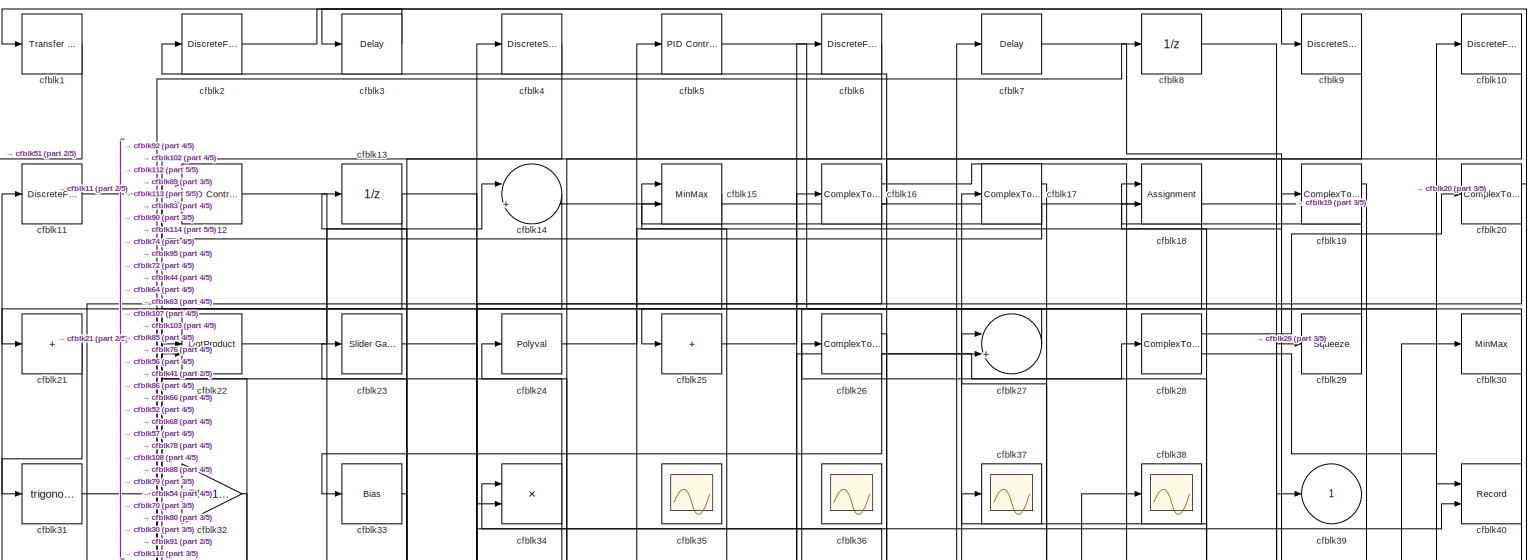
[diagram: root canvas - part 1/5, full width, top band]
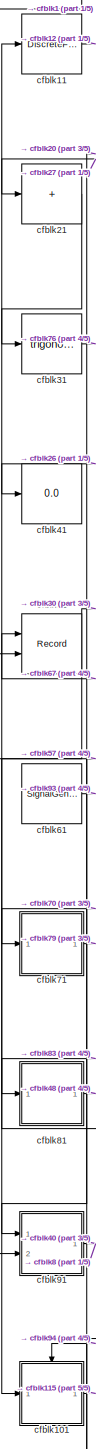
[diagram: root canvas - part 2/5, left side, full height]
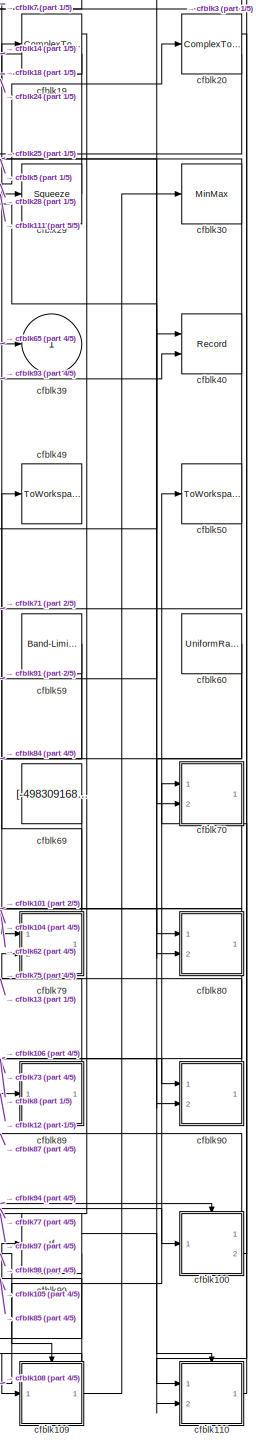
[diagram: root canvas - part 3/5, right side, full height]
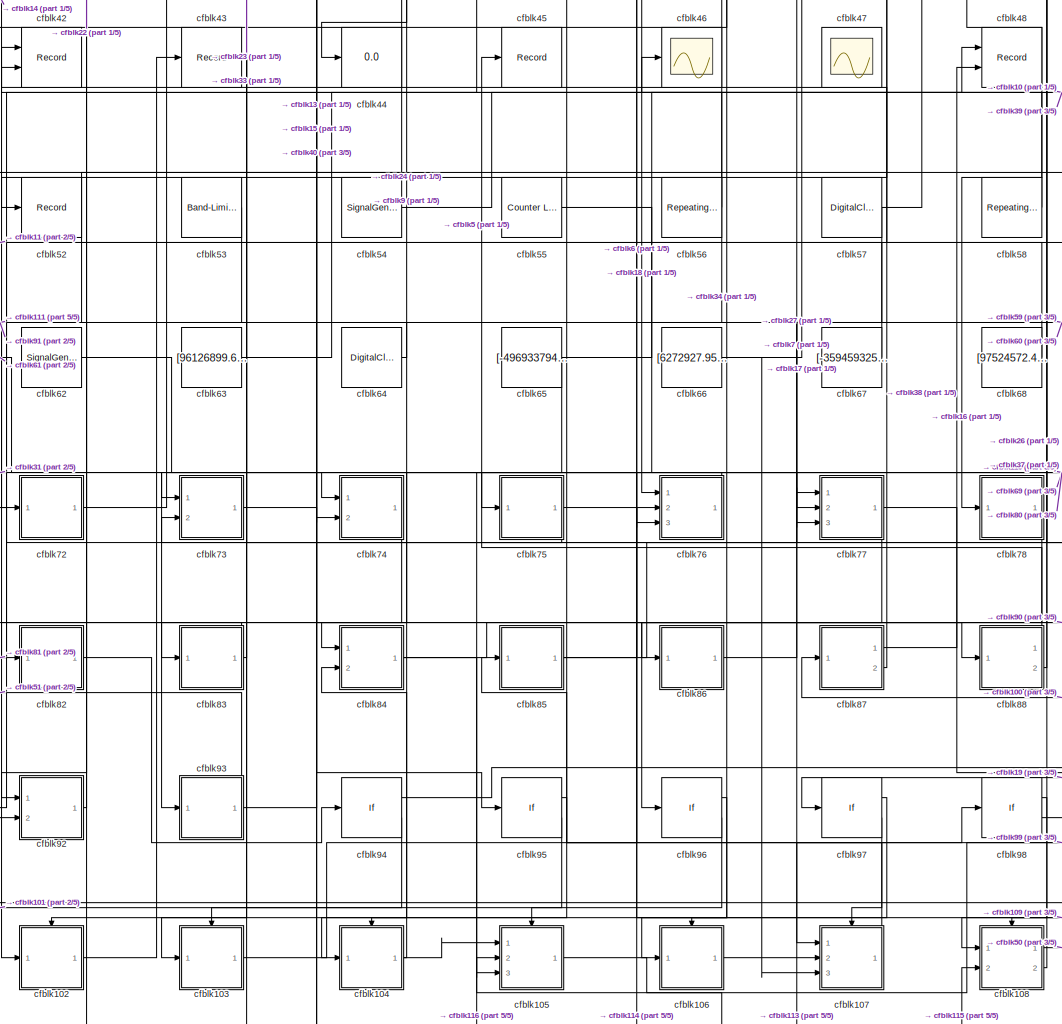
[diagram: root canvas - part 4/5, central region]
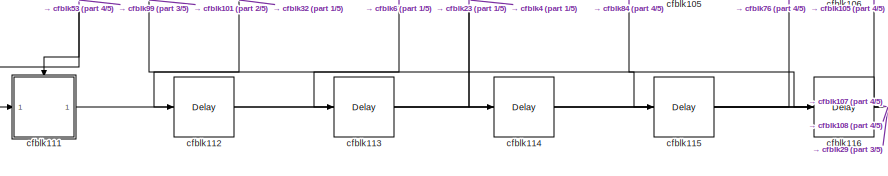
[diagram: root canvas - part 5/5, bottom left region]
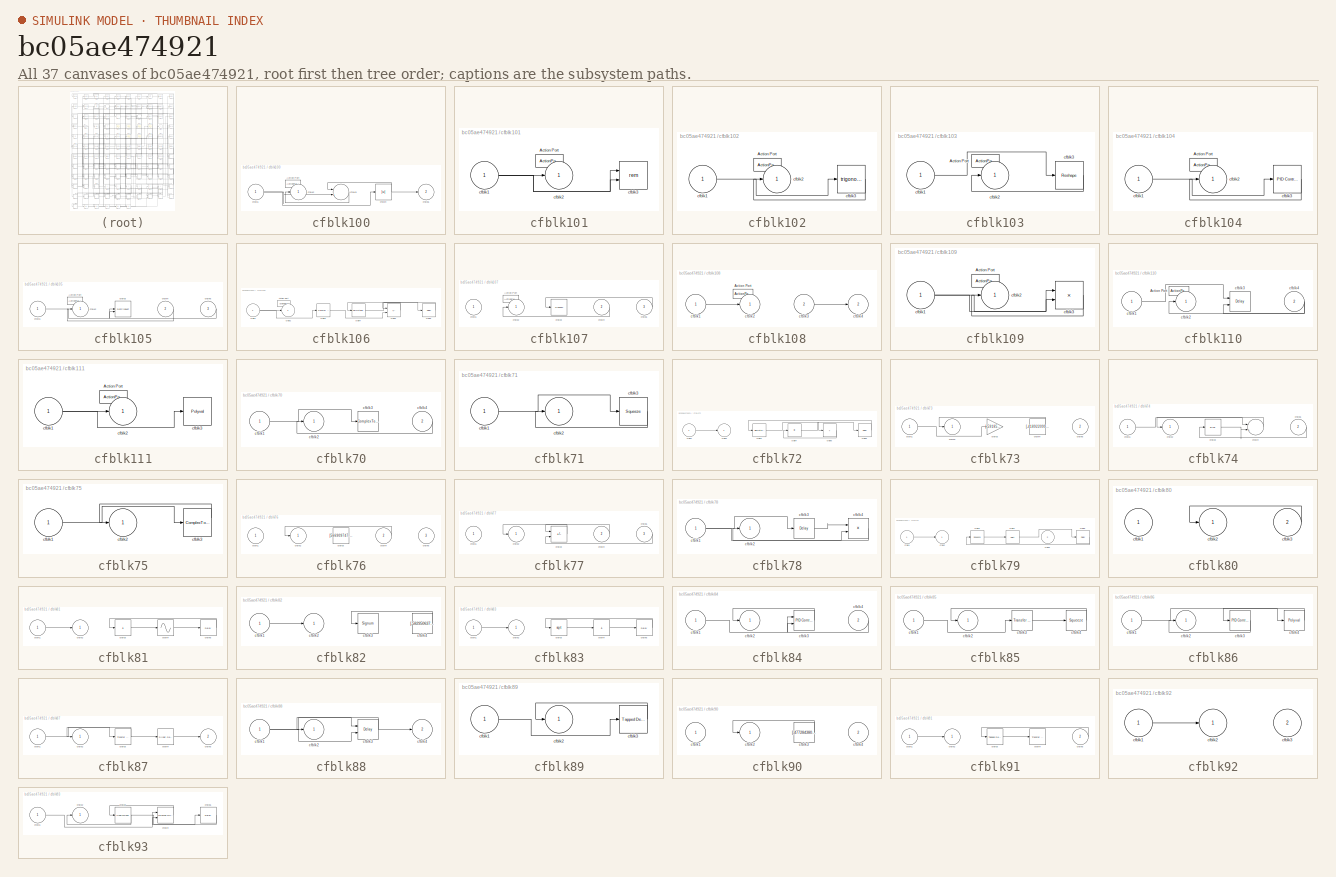
[diagram: thumbnail index - all 37 canvases of the model, root first then tree order]
MODEL slx_bc05ae474921
KIND model
CONFIG AbsTol = auto
CONFIG EnableMultiTasking = off
CONFIG FixedStep = auto
CONFIG MaxStep = auto
CONFIG MinStep = auto
CONFIG RelTol = 1e-3
CONFIG SampleTimeConstraint = Unconstrained
CONFIG SolverName = VariableStepAuto
CONFIG StartTime = 0.0
CONFIG StopTime = 10.0
BLOCK [Reference] cfblk1  REF=simulink/Discrete/Transfer Fcn
Real Zero
  Ports = [1, 1]
  SourceBlock = simulink/Discrete/Transfer Fcn\nReal Zero
  SourceProductBaseCode = SL
  SourceType = Transfer Fcn Real Zero
BLOCK [DiscreteFir] cfblk10
  InputPortMap = u0
  OutputPortMap = o0
  Ports = [1, 1]
  SampleTime = 1
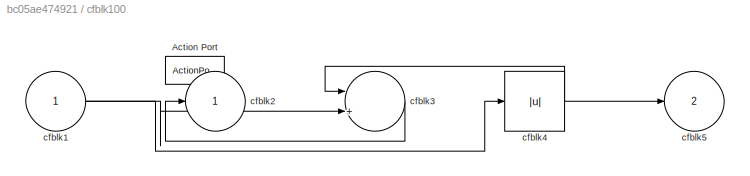
BLOCK [SubSystem] cfblk100
  Ports = [1, 2, 0, 0, 0, 0, 0, 1]
  RequestExecContextInheritance = off
  TreatAsAtomicUnit = on
BLOCK [ActionPort] cfblk100/Action Port
  ActionPortLabel = if(u1 >= 0)
BLOCK [Inport] cfblk100/cfblk1
BLOCK [Outport] cfblk100/cfblk2
BLOCK [Sum] cfblk100/cfblk3
  Inputs = |++
  Ports = [2, 1]
BLOCK [Abs] cfblk100/cfblk4
  SaturateOnIntegerOverflow = off
BLOCK [Outport] cfblk100/cfblk5
  Port = 2
BLOCK [SubSystem] cfblk101
  Ports = [1, 1, 0, 0, 0, 0, 0, 1]
  RequestExecContextInheritance = off
  TreatAsAtomicUnit = on
BLOCK [ActionPort] cfblk101/Action Port
  ActionPortLabel = else
BLOCK [Inport] cfblk101/cfblk1
BLOCK [Outport] cfblk101/cfblk2
BLOCK [Math] cfblk101/cfblk3
  Operator = rem
  Ports = [2, 1]
BLOCK [SubSystem] cfblk102
  Ports = [1, 1, 0, 0, 0, 0, 0, 1]
  RequestExecContextInheritance = off
  TreatAsAtomicUnit = on
BLOCK [ActionPort] cfblk102/Action Port
  ActionPortLabel = if(u1 >= 0)
BLOCK [Inport] cfblk102/cfblk1
BLOCK [Outport] cfblk102/cfblk2
BLOCK [Trigonometry] cfblk102/cfblk3
  Ports = [1, 1]
BLOCK [SubSystem] cfblk103
  Ports = [1, 1, 0, 0, 0, 0, 0, 1]
  RequestExecContextInheritance = off
  TreatAsAtomicUnit = on
BLOCK [ActionPort] cfblk103/Action Port
  ActionPortLabel = else
BLOCK [Inport] cfblk103/cfblk1
BLOCK [Outport] cfblk103/cfblk2
BLOCK [Reshape] cfblk103/cfblk3
  Ports = [1, 1]
BLOCK [SubSystem] cfblk104
  Ports = [1, 1, 0, 0, 0, 0, 0, 1]
  RequestExecContextInheritance = off
  TreatAsAtomicUnit = on
BLOCK [ActionPort] cfblk104/Action Port
  ActionPortLabel = if(u1 >= 0)
BLOCK [Inport] cfblk104/cfblk1
BLOCK [Outport] cfblk104/cfblk2
BLOCK [Reference] cfblk104/cfblk3  REF=slpidlib/PID Controller
  Ports = [1, 1]
  SourceBlock = slpidlib/PID Controller
  SourceProductBaseCode = SL
  SourceType = PID 1dof
BLOCK [SubSystem] cfblk105
  Ports = [3, 1, 0, 0, 0, 0, 0, 1]
  RequestExecContextInheritance = off
  TreatAsAtomicUnit = on
BLOCK [ActionPort] cfblk105/Action Port
  ActionPortLabel = else
BLOCK [Inport] cfblk105/cfblk1
BLOCK [Outport] cfblk105/cfblk2
BLOCK [DotProduct] cfblk105/cfblk3
  OutDataTypeStr = Inherit: Inherit via internal rule
BLOCK [Inport] cfblk105/cfblk4
  Port = 2
BLOCK [Inport] cfblk105/cfblk5
  Port = 3
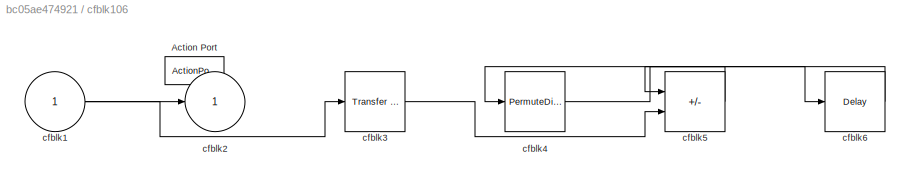
BLOCK [SubSystem] cfblk106
  Ports = [1, 1, 0, 0, 0, 0, 0, 1]
  RequestExecContextInheritance = off
  TreatAsAtomicUnit = on
BLOCK [ActionPort] cfblk106/Action Port
  ActionPortLabel = if(u1 >= 0)
BLOCK [Inport] cfblk106/cfblk1
BLOCK [Outport] cfblk106/cfblk2
BLOCK [Reference] cfblk106/cfblk3  REF=simulink/Discrete/Transfer Fcn
First Order
  Ports = [1, 1]
  SourceBlock = simulink/Discrete/Transfer Fcn\nFirst Order
  SourceProductBaseCode = SL
  SourceType = First Order Transfer Fcn
BLOCK [PermuteDimensions] cfblk106/cfblk4
BLOCK [Sum] cfblk106/cfblk5
  IconShape = rectangular
  Inputs = --
  Ports = [2, 1]
BLOCK [Delay] cfblk106/cfblk6
  InputPortMap = u0
  Ports = [1, 1]
BLOCK [SubSystem] cfblk107
  Ports = [3, 1, 0, 0, 0, 0, 0, 1]
  RequestExecContextInheritance = off
  TreatAsAtomicUnit = on
BLOCK [ActionPort] cfblk107/Action Port
  ActionPortLabel = else
BLOCK [Inport] cfblk107/cfblk1
BLOCK [Outport] cfblk107/cfblk2
BLOCK [Signum] cfblk107/cfblk3
BLOCK [Inport] cfblk107/cfblk4
  Port = 2
BLOCK [Inport] cfblk107/cfblk5
  Port = 3
BLOCK [SubSystem] cfblk108
  Ports = [2, 2, 0, 0, 0, 0, 0, 1]
  RequestExecContextInheritance = off
  TreatAsAtomicUnit = on
BLOCK [ActionPort] cfblk108/Action Port
  ActionPortLabel = if(u1 >= 0)
BLOCK [Inport] cfblk108/cfblk1
BLOCK [Outport] cfblk108/cfblk2
BLOCK [Inport] cfblk108/cfblk3
  Port = 2
BLOCK [Outport] cfblk108/cfblk4
  Port = 2
BLOCK [SubSystem] cfblk109
  Ports = [1, 1, 0, 0, 0, 0, 0, 1]
  RequestExecContextInheritance = off
  TreatAsAtomicUnit = on
BLOCK [ActionPort] cfblk109/Action Port
  ActionPortLabel = else
BLOCK [Inport] cfblk109/cfblk1
BLOCK [Outport] cfblk109/cfblk2
BLOCK [Product] cfblk109/cfblk3
  Ports = [2, 1]
BLOCK [DiscreteFilter] cfblk11
  InputPortMap = u0
  Ports = [1, 1]
  SampleTime = 1
BLOCK [SubSystem] cfblk110
  Ports = [2, 1, 0, 0, 0, 0, 0, 1]
  RequestExecContextInheritance = off
  TreatAsAtomicUnit = on
BLOCK [ActionPort] cfblk110/Action Port
  ActionPortLabel = if(u1 >= 0)
BLOCK [Inport] cfblk110/cfblk1
BLOCK [Outport] cfblk110/cfblk2
BLOCK [Delay] cfblk110/cfblk3
  DelayLengthSource = Input port
  InputPortMap = u0,p1
  Ports = [2, 1]
BLOCK [Inport] cfblk110/cfblk4
  Port = 2
BLOCK [SubSystem] cfblk111
  Ports = [1, 1, 0, 0, 0, 0, 0, 1]
  RequestExecContextInheritance = off
  TreatAsAtomicUnit = on
BLOCK [ActionPort] cfblk111/Action Port
  ActionPortLabel = else
BLOCK [Inport] cfblk111/cfblk1
BLOCK [Outport] cfblk111/cfblk2
BLOCK [Polyval] cfblk111/cfblk3
  Coefs = [ +2.081618890e-019, -1.441693666e-014, +4.719686976e-010, -8.536869453e-006, +1.621573104e-001, -8.087801117e+001 ]
BLOCK [Delay] cfblk112
  InputPortMap = u0
  Ports = [1, 1]
  SampleTime = 1
BLOCK [Delay] cfblk113
  InputPortMap = u0
  Ports = [1, 1]
  SampleTime = 1
BLOCK [Delay] cfblk114
  InputPortMap = u0
  Ports = [1, 1]
  SampleTime = 1
BLOCK [Delay] cfblk115
  InputPortMap = u0
  Ports = [1, 1]
  SampleTime = 1
BLOCK [Delay] cfblk116
  InputPortMap = u0
  Ports = [1, 1]
  SampleTime = 1
BLOCK [Reference] cfblk12  REF=slpidlib/PID Controller (2DOF)
  Ports = [2, 1]
  SourceBlock = slpidlib/PID Controller (2DOF)
  SourceProductBaseCode = SL
  SourceType = PID 2dof
BLOCK [UnitDelay] cfblk13
  HasFrameUpgradeWarning = on
BLOCK [Sum] cfblk14
  Inputs = |++
  Ports = [2, 1]
BLOCK [MinMax] cfblk15
  Function = max
  Inputs = 2
  Ports = [2, 1]
BLOCK [ComplexToMagnitudeAngle] cfblk16
  Ports = [1, 2]
BLOCK [ComplexToRealImag] cfblk17
  Ports = [1, 2]
BLOCK [Assignment] cfblk18
  DiagnosticForDimensions = Warning
  IndexOptions = Index vector (dialog)
  Indices = 1
  OutputSizes = 1
  Ports = [2, 1]
BLOCK [ComplexToRealImag] cfblk19
  Ports = [1, 2]
BLOCK [DiscreteFilter] cfblk2
  InputPortMap = u0
  Ports = [1, 1]
  SampleTime = 1
BLOCK [ComplexToMagnitudeAngle] cfblk20
  Ports = [1, 2]
BLOCK [Sum] cfblk21
  IconShape = rectangular
  Inputs = +
  Ports = [1, 1]
BLOCK [DotProduct] cfblk22
  OutDataTypeStr = Inherit: Inherit via internal rule
BLOCK [Reference] cfblk23  REF=simulink/Math
Operations/Slider
Gain
  Ports = [1, 1]
  SourceBlock = simulink/Math\nOperations/Slider\nGain
  SourceProductBaseCode = SL
  SourceType = Slider Gain
BLOCK [Polyval] cfblk24
  Coefs = [ +2.081618890e-019, -1.441693666e-014, +4.719686976e-010, -8.536869453e-006, +1.621573104e-001, -8.087801117e+001 ]
BLOCK [Sum] cfblk25
  IconShape = rectangular
  Inputs = +
  Ports = [1, 1]
BLOCK [ComplexToMagnitudeAngle] cfblk26
  Ports = [1, 2]
BLOCK [Sum] cfblk27
  Inputs = |++
  Ports = [2, 1]
BLOCK [ComplexToRealImag] cfblk28
  Ports = [1, 2]
BLOCK [Squeeze] cfblk29
BLOCK [Delay] cfblk3
  InputPortMap = u0
  Ports = [1, 1]
  SampleTime = 1
BLOCK [MinMax] cfblk30
  Function = max
  Ports = [1, 1]
BLOCK [Trigonometry] cfblk31
  Ports = [1, 1]
BLOCK [Gain] cfblk32
  Gain = [-744013135.474765]
BLOCK [Bias] cfblk33
  Bias = [934056195.028389]
  SaturateOnIntegerOverflow = off
BLOCK [Product] cfblk34
  Ports = [2, 1]
BLOCK [Scope] cfblk35
  Floating = on
  NumInputPorts = 1
  Ports = []
BLOCK [Scope] cfblk36
  Floating = on
  NumInputPorts = 1
  Ports = []
BLOCK [Scope] cfblk37
  Floating = off
  NumInputPorts = 1
  Ports = [1]
BLOCK [Scope] cfblk38
  Floating = off
  NumInputPorts = 1
  Ports = [1]
BLOCK [Outport] cfblk39
BLOCK [DiscreteStateSpace] cfblk4
BLOCK [Record] cfblk40
  CompatibilityTag = XY
  FileSettingsInternal = {"entries":[{"content":{"excelSettings":{"content":{},"type":"Streamout.ExcelSettings"}},"type":"Streamout.FileSettingStorage","uuid":"ac7d372c-dd0a-40d9-8f93-2bed3ffcb02e"}],"packageUris":["http://schema.mathworks.com/mf0/streamout_blocks/R2020a"],"version":"1.0"}
  Layout = [1 1]
  Ports = [2]
  SignalsInternal = {"entries":[{"content":{"signals":[{"content":{"blockPath":["sampleModel173/cfblk40"],"channel":[],"dimensions":[1],"domain":"sampleModel173/cfblk40","lineColor":"#a2142f","plots":[1],"port":1,"sid":[""],"signalID":6486,"signalName":"cfblk91"},"type":"RecordBlkView.Signal","uuid":"04550265-7776-4952-b4b8-fad3a9e152c9"},{"content":{"blockPath":["sampleModel173/cfblk40"],"channel":[],"dimensions":[1...<+383ch>
  VisualizationBindings = {"xyplotplugin":{"info":[{"series":[{"bindingParametersList":[{"parameter":"X-Axis","signalID":6486,"signalName":"cfblk91"},{"parameter":"Y-Axis","signalID":6490,"signalName":"cfblk93"}],"seriesID":32667}],"subplotID":1}]}}
BLOCK [Display] cfblk41
  Decimation = 1
  Ports = [1]
BLOCK [Record] cfblk42
  CompatibilityTag = XY
  FileSettingsInternal = {"entries":[{"content":{"excelSettings":{"content":{},"type":"Streamout.ExcelSettings"}},"type":"Streamout.FileSettingStorage","uuid":"98f4204a-bc71-4c77-a4fc-4dc474f3652d"}],"packageUris":["http://schema.mathworks.com/mf0/streamout_blocks/R2020a"],"version":"1.0"}
  Layout = [1 1]
  Ports = [2]
  SignalsInternal = {"entries":[{"content":{"signals":[{"content":{"blockPath":["sampleModel173/cfblk42"],"channel":[],"dimensions":[1],"domain":"sampleModel173/cfblk42","lineColor":"#a2142f","plots":[1],"port":1,"sid":[""],"signalID":6494,"signalName":"cfblk58"},"type":"RecordBlkView.Signal","uuid":"54ebf9e8-4049-452c-904a-07aac4c77107"},{"content":{"blockPath":["sampleModel173/cfblk42"],"channel":[],"dimensions":[1...<+385ch>
  VisualizationBindings = {"xyplotplugin":{"info":[{"series":[{"bindingParametersList":[{"parameter":"X-Axis","signalID":6494,"signalName":"cfblk58"},{"parameter":"Y-Axis","signalID":6498,"signalName":"cfblk87:2"}],"seriesID":36552}],"subplotID":1}]}}
BLOCK [Record] cfblk43
  FileSettingsInternal = {"entries":[{"content":{"excelSettings":{"content":{},"type":"Streamout.ExcelSettings"}},"type":"Streamout.FileSettingStorage","uuid":"dd427ad3-f8cc-4d0b-ad25-0937522762f9"}],"packageUris":["http://schema.mathworks.com/mf0/streamout_blocks/R2020a"],"version":"1.0"}
  Ports = [1]
  SignalsInternal = {"entries":[{"content":{"signals":[{"content":{"blockPath":["sampleModel173/cfblk43"],"channel":[],"dimensions":[1],"domain":"sampleModel173/cfblk43","lineColor":"#22b573","plots":[1],"port":1,"sid":[""],"signalID":6502,"signalName":"cfblk102"},"type":"RecordBlkView.Signal","uuid":"e96818c3-e4cd-4c92-b99d-5e4a5bdab113"}]},"type":"RecordBlkView.InputSignals","uuid":"25597274-1f8f-46e0-ac63-e07cdd4c...<+98ch>
  VisualizationBindings = {"sparklinesplugin":{"info":[{"bindingParametersList":[],"subplotID":1}]}}
BLOCK [Display] cfblk44
  Decimation = 1
  Ports = [1]
BLOCK [Record] cfblk45
  FileSettingsInternal = {"entries":[{"content":{"excelSettings":{"content":{},"type":"Streamout.ExcelSettings"}},"type":"Streamout.FileSettingStorage","uuid":"4a883e5b-73dc-46ef-852a-c9309d397aeb"}],"packageUris":["http://schema.mathworks.com/mf0/streamout_blocks/R2020a"],"version":"1.0"}
  Ports = [1]
  SignalsInternal = {"entries":[{"content":{"signals":[{"content":{"blockPath":["sampleModel173/cfblk45"],"channel":[],"dimensions":[1],"domain":"sampleModel173/cfblk45","lineColor":"#0072bd","plots":[1],"port":1,"sid":[""],"signalID":6506,"signalName":"cfblk88:1"},"type":"RecordBlkView.Signal","uuid":"33cb4f59-80e7-4453-8ec4-05215251455d"}]},"type":"RecordBlkView.InputSignals","uuid":"dc2aa3db-0660-41cb-9163-f3afb9f...<+99ch>
  VisualizationBindings = {"sparklinesplugin":{"info":[{"bindingParametersList":[],"subplotID":1}]}}
BLOCK [Scope] cfblk46
  Floating = off
  NumInputPorts = 1
  Ports = [1]
BLOCK [Scope] cfblk47
  Floating = on
  NumInputPorts = 1
  Ports = []
BLOCK [Record] cfblk48
  CompatibilityTag = XY
  FileSettingsInternal = {"entries":[{"content":{"excelSettings":{"content":{},"type":"Streamout.ExcelSettings"}},"type":"Streamout.FileSettingStorage","uuid":"f392cfb0-111d-4cfb-86a1-b9696635cc0a"}],"packageUris":["http://schema.mathworks.com/mf0/streamout_blocks/R2020a"],"version":"1.0"}
  Layout = [1 1]
  Ports = [2]
  SignalsInternal = {"entries":[{"content":{"signals":[{"content":{"blockPath":["sampleModel173/cfblk48"],"channel":[],"dimensions":[1],"domain":"sampleModel173/cfblk48","lineColor":"#a2142f","plots":[1],"port":1,"sid":[""],"signalID":6510,"signalName":"cfblk81"},"type":"RecordBlkView.Signal","uuid":"ac88b72e-4ae7-4a92-9df9-0b8b80bfc131"},{"content":{"blockPath":["sampleModel173/cfblk48"],"channel":[],"dimensions":[1...<+385ch>
  VisualizationBindings = {"xyplotplugin":{"info":[{"series":[{"bindingParametersList":[{"parameter":"X-Axis","signalID":6510,"signalName":"cfblk81"},{"parameter":"Y-Axis","signalID":6514,"signalName":"cfblk87:1"}],"seriesID":18221}],"subplotID":1}]}}
BLOCK [ToWorkspace] cfblk49
  FixptAsFi = on
  MaxDataPoints = inf
  Ports = [1]
  SampleTime = -1
  SaveFormat = Timeseries
  VariableName = kgzkzwq
BLOCK [Reference] cfblk5  REF=slpidlib/PID Controller
  Ports = [1, 1]
  SourceBlock = slpidlib/PID Controller
  SourceProductBaseCode = SL
  SourceType = PID 1dof
BLOCK [ToWorkspace] cfblk50
  FixptAsFi = on
  MaxDataPoints = inf
  Ports = [1]
  SampleTime = -1
  SaveFormat = Timeseries
  VariableName = pdyiylr
BLOCK [Record] cfblk51
  CompatibilityTag = XY
  FileSettingsInternal = {"entries":[{"content":{"excelSettings":{"content":{},"type":"Streamout.ExcelSettings"}},"type":"Streamout.FileSettingStorage","uuid":"3226b747-61fa-41c7-a299-72f406cb1615"}],"packageUris":["http://schema.mathworks.com/mf0/streamout_blocks/R2020a"],"version":"1.0"}
  Layout = [1 1]
  Ports = [2]
  SignalsInternal = {"entries":[{"content":{"signals":[{"content":{"blockPath":["sampleModel173/cfblk51"],"channel":[],"dimensions":[1],"domain":"sampleModel173/cfblk51","lineColor":"#a2142f","plots":[1],"port":1,"sid":[""],"signalID":6518,"signalName":"cfblk93"},"type":"RecordBlkView.Signal","uuid":"c4b554cb-08b0-4747-b92a-3f7634a20115"},{"content":{"blockPath":["sampleModel173/cfblk51"],"channel":[],"dimensions":[1...<+382ch>
  VisualizationBindings = {"xyplotplugin":{"info":[{"series":[{"bindingParametersList":[{"parameter":"X-Axis","signalID":6518,"signalName":"cfblk93"},{"parameter":"Y-Axis","signalID":6522,"signalName":"cfblk1"}],"seriesID":48364}],"subplotID":1}]}}
BLOCK [Record] cfblk52
  FileSettingsInternal = {"entries":[{"content":{"excelSettings":{"content":{},"type":"Streamout.ExcelSettings"}},"type":"Streamout.FileSettingStorage","uuid":"b1c8602d-8e85-4121-9e1b-32b7eeb49d84"}],"packageUris":["http://schema.mathworks.com/mf0/streamout_blocks/R2020a"],"version":"1.0"}
  Ports = [1]
  SignalsInternal = {"entries":[{"content":{"signals":[{"content":{"blockPath":["sampleModel173/cfblk52"],"channel":[],"dimensions":[1],"domain":"sampleModel173/cfblk52","lineColor":"#4dbeee","plots":[1],"port":1,"sid":[""],"signalID":6526,"signalName":"cfblk17:1"},"type":"RecordBlkView.Signal","uuid":"7e7d0b4f-45d8-41ca-9f71-80e07a5db089"}]},"type":"RecordBlkView.InputSignals","uuid":"500e5f8d-fcde-4bc3-9685-ebb868b...<+99ch>
  VisualizationBindings = {"sparklinesplugin":{"info":[{"bindingParametersList":[],"subplotID":1}]}}
BLOCK [Reference] cfblk53  REF=simulink/Sources/Band-Limited
White Noise
  Ports = [0, 1]
  SourceBlock = simulink/Sources/Band-Limited\nWhite Noise
  SourceProductBaseCode = SL
  SourceType = Band-Limited White Noise.
BLOCK [SignalGenerator] cfblk54
  Amplitude = [-552028913.079956]
  Ports = [0, 1]
  WaveForm = sawtooth
BLOCK [Reference] cfblk55  REF=simulink/Sources/Counter
Limited
  Ports = [0, 1]
  SourceBlock = simulink/Sources/Counter\nLimited
  SourceProductBaseCode = SL
  SourceType = Counter Limited
BLOCK [Reference] cfblk56  REF=simulink/Sources/Repeating
Sequence
  Ports = [0, 1]
  SourceBlock = simulink/Sources/Repeating\nSequence
  SourceProductBaseCode = SL
  SourceType = Repeating table
BLOCK [DigitalClock] cfblk57
BLOCK [Reference] cfblk58  REF=simulink/Sources/Repeating
Sequence
Interpolated
  Ports = [0, 1]
  SourceBlock = simulink/Sources/Repeating\nSequence\nInterpolated
  SourceProductBaseCode = SL
  SourceType = Repeating Sequence Interpolated
BLOCK [Reference] cfblk59  REF=simulink/Sources/Band-Limited
White Noise
  Ports = [0, 1]
  SourceBlock = simulink/Sources/Band-Limited\nWhite Noise
  SourceProductBaseCode = SL
  SourceType = Band-Limited White Noise.
BLOCK [DiscreteFilter] cfblk6
  InputPortMap = u0
  Ports = [1, 1]
  SampleTime = 1
BLOCK [UniformRandomNumber] cfblk60
  Maximum = [6422235824.506957]
  Minimum = [-7753046955.359974]
  SampleTime = 0.1
  Seed = [30660211.000000]
BLOCK [SignalGenerator] cfblk61
  Amplitude = [113317491.669329]
  Ports = [0, 1]
  Units = rad/sec
  WaveForm = sawtooth
BLOCK [SignalGenerator] cfblk62
  Amplitude = [552546170.175436]
  Ports = [0, 1]
  Units = rad/sec
  WaveForm = sawtooth
BLOCK [Constant] cfblk63
  SampleTime = 1
  Value = [96126899.675690]
BLOCK [DigitalClock] cfblk64
BLOCK [Constant] cfblk65
  SampleTime = 1
  Value = [-496933794.664557]
BLOCK [Constant] cfblk66
  SampleTime = 1
  Value = [6272927.959683]
BLOCK [Constant] cfblk67
  SampleTime = 1
  Value = [-359459325.926056]
BLOCK [Constant] cfblk68
  SampleTime = 1
  Value = [97524572.436509]
BLOCK [Constant] cfblk69
  SampleTime = 1
  Value = [-498309168.723283]
BLOCK [Delay] cfblk7
  InputPortMap = u0
  Ports = [1, 1]
  SampleTime = 1
BLOCK [SubSystem] cfblk70
  Ports = [2, 1]
  RequestExecContextInheritance = off
BLOCK [Inport] cfblk70/cfblk1
BLOCK [Outport] cfblk70/cfblk2
BLOCK [ComplexToRealImag] cfblk70/cfblk3
  Ports = [1, 2]
BLOCK [Inport] cfblk70/cfblk4
  Port = 2
BLOCK [SubSystem] cfblk71
  Ports = [1, 1]
  RequestExecContextInheritance = off
BLOCK [Inport] cfblk71/cfblk1
BLOCK [Outport] cfblk71/cfblk2
BLOCK [Squeeze] cfblk71/cfblk3
BLOCK [SubSystem] cfblk72
  Ports = [1, 1]
  RequestExecContextInheritance = off
BLOCK [Inport] cfblk72/cfblk1
BLOCK [Outport] cfblk72/cfblk2
BLOCK [DiscreteTransferFcn] cfblk72/cfblk3
  InputPortMap = u0
  Ports = [1, 1]
  SampleTime = 1
BLOCK [Product] cfblk72/cfblk4
  Inputs = *
  Ports = [1, 1]
BLOCK [Sum] cfblk72/cfblk5
  IconShape = rectangular
  Inputs = +
  Ports = [1, 1]
BLOCK [Delay] cfblk72/cfblk6
  InputPortMap = u0
  Ports = [1, 1]
  SampleTime = 1
BLOCK [SubSystem] cfblk73
  Ports = [2, 1]
  RequestExecContextInheritance = off
BLOCK [Inport] cfblk73/cfblk1
BLOCK [Outport] cfblk73/cfblk2
BLOCK [Gain] cfblk73/cfblk3
  Gain = [-591850690.732533]
BLOCK [Constant] cfblk73/cfblk4
  SampleTime = 1
  Value = [-418922099.880487]
BLOCK [Inport] cfblk73/cfblk5
  Port = 2
BLOCK [SubSystem] cfblk74
  Ports = [2, 1]
  RequestExecContextInheritance = off
BLOCK [Inport] cfblk74/cfblk1
BLOCK [Outport] cfblk74/cfblk2
BLOCK [Bias] cfblk74/cfblk3
  Bias = [720296183.628791]
  SaturateOnIntegerOverflow = off
BLOCK [Sum] cfblk74/cfblk4
  Inputs = |++
  Ports = [2, 1]
BLOCK [Inport] cfblk74/cfblk5
  Port = 2
BLOCK [SubSystem] cfblk75
  Ports = [1, 1]
  RequestExecContextInheritance = off
BLOCK [Inport] cfblk75/cfblk1
BLOCK [Outport] cfblk75/cfblk2
BLOCK [ComplexToMagnitudeAngle] cfblk75/cfblk3
  Ports = [1, 2]
BLOCK [SubSystem] cfblk76
  Ports = [3, 1]
  RequestExecContextInheritance = off
BLOCK [Inport] cfblk76/cfblk1
BLOCK [Outport] cfblk76/cfblk2
BLOCK [Constant] cfblk76/cfblk3
  SampleTime = 1
  Value = [566909747.778400]
BLOCK [Inport] cfblk76/cfblk4
  Port = 2
BLOCK [Inport] cfblk76/cfblk5
  Port = 3
BLOCK [SubSystem] cfblk77
  Ports = [3, 1]
  RequestExecContextInheritance = off
BLOCK [Inport] cfblk77/cfblk1
BLOCK [Outport] cfblk77/cfblk2
BLOCK [Sum] cfblk77/cfblk3
  IconShape = rectangular
  Inputs = +-
  Ports = [2, 1]
BLOCK [Inport] cfblk77/cfblk4
  Port = 2
BLOCK [Inport] cfblk77/cfblk5
  Port = 3
BLOCK [SubSystem] cfblk78
  Ports = [1, 1]
  RequestExecContextInheritance = off
BLOCK [Inport] cfblk78/cfblk1
BLOCK [Outport] cfblk78/cfblk2
BLOCK [Delay] cfblk78/cfblk3
  InputPortMap = u0
  Ports = [1, 1]
  SampleTime = 1
BLOCK [Product] cfblk78/cfblk4
  Inputs = **
  Ports = [2, 1]
BLOCK [SubSystem] cfblk79
  Ports = [2, 1]
  RequestExecContextInheritance = off
BLOCK [Inport] cfblk79/cfblk1
BLOCK [Outport] cfblk79/cfblk2
BLOCK [Squeeze] cfblk79/cfblk3
BLOCK [Sqrt] cfblk79/cfblk4
BLOCK [Inport] cfblk79/cfblk5
  Port = 2
BLOCK [Delay] cfblk79/cfblk6
  InputPortMap = u0
  Ports = [1, 1]
  SampleTime = 1
BLOCK [UnitDelay] cfblk8
  HasFrameUpgradeWarning = on
BLOCK [SubSystem] cfblk80
  Ports = [2, 1]
  RequestExecContextInheritance = off
BLOCK [Inport] cfblk80/cfblk1
BLOCK [Outport] cfblk80/cfblk2
BLOCK [Inport] cfblk80/cfblk3
  Port = 2
BLOCK [SubSystem] cfblk81
  Ports = [1, 1]
  RequestExecContextInheritance = off
BLOCK [Inport] cfblk81/cfblk1
BLOCK [Outport] cfblk81/cfblk2
BLOCK [Sum] cfblk81/cfblk3
  IconShape = rectangular
  Inputs = +
  Ports = [1, 1]
BLOCK [Sin] cfblk81/cfblk4
  Ports = [1, 1]
  SampleTime = 0
  TimeSource = Use external signal
BLOCK [Delay] cfblk81/cfblk5
  InputPortMap = u0
  Ports = [1, 1]
  SampleTime = 1
BLOCK [SubSystem] cfblk82
  Ports = [1, 1]
  RequestExecContextInheritance = off
BLOCK [Inport] cfblk82/cfblk1
BLOCK [Outport] cfblk82/cfblk2
BLOCK [Signum] cfblk82/cfblk3
BLOCK [Constant] cfblk82/cfblk4
  SampleTime = 1
  Value = [-582950637.379891]
BLOCK [SubSystem] cfblk83
  Ports = [1, 1]
  RequestExecContextInheritance = off
BLOCK [Inport] cfblk83/cfblk1
BLOCK [Outport] cfblk83/cfblk2
BLOCK [Sqrt] cfblk83/cfblk3
BLOCK [Sum] cfblk83/cfblk4
  IconShape = rectangular
  Inputs = +
  Ports = [1, 1]
BLOCK [Delay] cfblk83/cfblk5
  InputPortMap = u0
  Ports = [1, 1]
  SampleTime = 1
BLOCK [SubSystem] cfblk84
  Ports = [2, 1]
  RequestExecContextInheritance = off
BLOCK [Inport] cfblk84/cfblk1
BLOCK [Outport] cfblk84/cfblk2
BLOCK [Reference] cfblk84/cfblk3  REF=slpidlib/PID Controller (2DOF)
  Ports = [2, 1]
  SourceBlock = slpidlib/PID Controller (2DOF)
  SourceProductBaseCode = SL
  SourceType = PID 2dof
BLOCK [Inport] cfblk84/cfblk4
  Port = 2
BLOCK [SubSystem] cfblk85
  Ports = [1, 1]
  RequestExecContextInheritance = off
BLOCK [Inport] cfblk85/cfblk1
BLOCK [Outport] cfblk85/cfblk2
BLOCK [Reference] cfblk85/cfblk3  REF=simulink/Discrete/Transfer Fcn
Lead or Lag
  Ports = [1, 1]
  SourceBlock = simulink/Discrete/Transfer Fcn\nLead or Lag
  SourceProductBaseCode = SL
  SourceType = Lead or Lag Compensator
BLOCK [Squeeze] cfblk85/cfblk4
BLOCK [SubSystem] cfblk86
  Ports = [1, 1]
  RequestExecContextInheritance = off
BLOCK [Inport] cfblk86/cfblk1
BLOCK [Outport] cfblk86/cfblk2
BLOCK [Reference] cfblk86/cfblk3  REF=slpidlib/PID Controller
  Ports = [1, 1]
  SourceBlock = slpidlib/PID Controller
  SourceProductBaseCode = SL
  SourceType = PID 1dof
BLOCK [Polyval] cfblk86/cfblk4
  Coefs = [ +2.081618890e-019, -1.441693666e-014, +4.719686976e-010, -8.536869453e-006, +1.621573104e-001, -8.087801117e+001 ]
BLOCK [SubSystem] cfblk87
  Ports = [1, 2]
  RequestExecContextInheritance = off
BLOCK [Inport] cfblk87/cfblk1
BLOCK [Outport] cfblk87/cfblk2
BLOCK [Reference] cfblk87/cfblk3  REF=simulink/Discrete/Transfer Fcn
First Order
  Ports = [1, 1]
  SourceBlock = simulink/Discrete/Transfer Fcn\nFirst Order
  SourceProductBaseCode = SL
  SourceType = First Order Transfer Fcn
BLOCK [Reference] cfblk87/cfblk4  REF=simulink/Math
Operations/Slider
Gain
  Ports = [1, 1]
  SourceBlock = simulink/Math\nOperations/Slider\nGain
  SourceProductBaseCode = SL
  SourceType = Slider Gain
BLOCK [Outport] cfblk87/cfblk5
  Port = 2
BLOCK [SubSystem] cfblk88
  Ports = [1, 2]
  RequestExecContextInheritance = off
BLOCK [Inport] cfblk88/cfblk1
BLOCK [Outport] cfblk88/cfblk2
BLOCK [Delay] cfblk88/cfblk3
  InputPortMap = u0,e6
  Ports = [2, 1]
  SampleTime = 1
  ShowEnablePort = on
BLOCK [Outport] cfblk88/cfblk4
  Port = 2
BLOCK [SubSystem] cfblk89
  Ports = [1, 1]
  RequestExecContextInheritance = off
BLOCK [Inport] cfblk89/cfblk1
BLOCK [Outport] cfblk89/cfblk2
BLOCK [Reference] cfblk89/cfblk3  REF=simulink/Discrete/Tapped Delay
  Ports = [1, 1]
  SourceBlock = simulink/Discrete/Tapped Delay
  SourceProductBaseCode = SL
  SourceType = Tapped Delay Line
BLOCK [DiscreteStateSpace] cfblk9
BLOCK [SubSystem] cfblk90
  Ports = [2, 1]
  RequestExecContextInheritance = off
BLOCK [Inport] cfblk90/cfblk1
BLOCK [Outport] cfblk90/cfblk2
BLOCK [Constant] cfblk90/cfblk3
  SampleTime = 1
  Value = [-477284380.154085]
BLOCK [Inport] cfblk90/cfblk4
  Port = 2
BLOCK [SubSystem] cfblk91
  Ports = [2, 1]
  RequestExecContextInheritance = off
BLOCK [Inport] cfblk91/cfblk1
BLOCK [Outport] cfblk91/cfblk2
BLOCK [Reference] cfblk91/cfblk3  REF=simulink/Discrete/Tapped Delay
  Ports = [1, 1]
  SourceBlock = simulink/Discrete/Tapped Delay
  SourceProductBaseCode = SL
  SourceType = Tapped Delay Line
BLOCK [Reference] cfblk91/cfblk4  REF=simulink/Discrete/Transfer Fcn
Lead or Lag
  Ports = [1, 1]
  SourceBlock = simulink/Discrete/Transfer Fcn\nLead or Lag
  SourceProductBaseCode = SL
  SourceType = Lead or Lag Compensator
BLOCK [Inport] cfblk91/cfblk5
  Port = 2
BLOCK [SubSystem] cfblk92
  Ports = [2, 1]
  RequestExecContextInheritance = off
BLOCK [Inport] cfblk92/cfblk1
BLOCK [Outport] cfblk92/cfblk2
BLOCK [Inport] cfblk92/cfblk3
  Port = 2
BLOCK [SubSystem] cfblk93
  Ports = [1, 1]
  RequestExecContextInheritance = off
BLOCK [Inport] cfblk93/cfblk1
BLOCK [Outport] cfblk93/cfblk2
BLOCK [UnaryMinus] cfblk93/cfblk3
BLOCK [Reference] cfblk93/cfblk4  REF=simulink/Math
Operations/MinMax
Running
Resettable
  Ports = [2, 1]
  SourceBlock = simulink/Math\nOperations/MinMax\nRunning\nResettable
  SourceProductBaseCode = SL
  SourceType = MinMax Running Resettable
BLOCK [Delay] cfblk93/cfblk5
  InputPortMap = u0
  Ports = [1, 1]
  SampleTime = 1
BLOCK [If] cfblk94
  IfExpression = u1 >= 0
  Ports = [1, 2]
  SampleTime = 1
BLOCK [If] cfblk95
  IfExpression = u1 >= 0
  Ports = [1, 2]
  SampleTime = 1
BLOCK [If] cfblk96
  IfExpression = u1 >= 0
  Ports = [1, 2]
  SampleTime = 1
BLOCK [If] cfblk97
  IfExpression = u1 >= 0
  Ports = [1, 2]
  SampleTime = 1
BLOCK [If] cfblk98
  IfExpression = u1 >= 0
  Ports = [1, 2]
  SampleTime = 1
BLOCK [If] cfblk99
  IfExpression = u1 >= 0
  Ports = [1, 2]
  SampleTime = 1
NET cfblk100/cfblk1:1 -> cfblk100/cfblk3:2, cfblk100/cfblk4:1
LINE cfblk100/cfblk3:1 -> cfblk100/cfblk2:1
NET cfblk100/cfblk4:1 -> cfblk100/cfblk3:1, cfblk100/cfblk5:1
LINE cfblk100:1 -> cfblk87:1
LINE cfblk100:2 -> cfblk70:1
NET cfblk101/cfblk1:1 -> cfblk101/cfblk2:1, cfblk101/cfblk3:1, cfblk101/cfblk3:2
LINE cfblk101:1 -> cfblk115:1
LINE cfblk102/cfblk1:1 -> cfblk102/cfblk3:1
LINE cfblk102/cfblk3:1 -> cfblk102/cfblk2:1
LINE cfblk102:1 -> cfblk43:1
LINE cfblk103/cfblk1:1 -> cfblk103/cfblk3:1
LINE cfblk103/cfblk3:1 -> cfblk103/cfblk2:1
LINE cfblk103:1 -> cfblk6:1
LINE cfblk104/cfblk1:1 -> cfblk104/cfblk3:1
LINE cfblk104/cfblk3:1 -> cfblk104/cfblk2:1
NET cfblk104:1 -> cfblk105:1, cfblk84:2
LINE cfblk105/cfblk1:1 -> cfblk105/cfblk3:1
LINE cfblk105/cfblk4:1 -> cfblk105/cfblk2:1
LINE cfblk105/cfblk5:1 -> cfblk105/cfblk3:2
LINE cfblk105:1 -> cfblk99:1
NET cfblk106/cfblk1:1 -> cfblk106/cfblk2:1, cfblk106/cfblk3:1
LINE cfblk106/cfblk3:1 -> cfblk106/cfblk5:2
LINE cfblk106/cfblk4:1 -> cfblk106/cfblk6:1
LINE cfblk106/cfblk5:1 -> cfblk106/cfblk4:1
LINE cfblk106/cfblk6:1 -> cfblk106/cfblk5:1
LINE cfblk106:1 -> cfblk98:1
LINE cfblk107/cfblk4:1 -> cfblk107/cfblk2:1
LINE cfblk107/cfblk5:1 -> cfblk107/cfblk3:1
LINE cfblk107:1 -> cfblk15:2
LINE cfblk108/cfblk1:1 -> cfblk108/cfblk2:1
LINE cfblk108/cfblk3:1 -> cfblk108/cfblk4:1
LINE cfblk108:1 -> cfblk50:1
LINE cfblk108:2 -> cfblk37:1
NET cfblk109/cfblk1:1 -> cfblk109/cfblk3:1, cfblk109/cfblk3:2
LINE cfblk109/cfblk3:1 -> cfblk109/cfblk2:1
NET cfblk109:1 -> cfblk108:1, cfblk30:1, cfblk85:1
LINE cfblk10:1 -> cfblk86:1
LINE cfblk110/cfblk1:1 -> cfblk110/cfblk3:1
NET cfblk110/cfblk4:1 -> cfblk110/cfblk2:1, cfblk110/cfblk3:2
LINE cfblk110:1 -> cfblk3:1
NET cfblk111/cfblk1:1 -> cfblk111/cfblk2:1, cfblk111/cfblk3:1
LINE cfblk111:1 -> cfblk29:1
LINE cfblk112:1 -> cfblk4:1
LINE cfblk113:1 -> cfblk107:2
LINE cfblk114:1 -> cfblk76:2
LINE cfblk115:1 -> cfblk108:2
LINE cfblk116:1 -> cfblk105:2
LINE cfblk11:1 -> cfblk12:1
LINE cfblk12:1 -> cfblk89:1
NET cfblk13:1 -> cfblk92:2, cfblk95:1
LINE cfblk14:1 -> cfblk102:1
LINE cfblk15:1 -> cfblk74:2
LINE cfblk16:1 -> cfblk78:1
NET cfblk16:2 -> cfblk2:1, cfblk34:2
LINE cfblk17:1 -> cfblk52:1
NET cfblk17:2 -> cfblk12:2, cfblk15:1
LINE cfblk18:1 -> cfblk76:1
LINE cfblk19:1 -> cfblk97:1
LINE cfblk19:2 -> cfblk18:1
LINE cfblk1:1 -> cfblk51:2
LINE cfblk20:1 -> cfblk110:2
LINE cfblk20:2 -> cfblk91:1
LINE cfblk21:1 -> cfblk31:1
LINE cfblk22:1 -> cfblk14:1
LINE cfblk23:1 -> cfblk114:1
LINE cfblk24:1 -> cfblk19:1
LINE cfblk25:1 -> cfblk16:1
LINE cfblk26:1 -> cfblk41:1
NET cfblk26:2 -> cfblk28:1, cfblk33:1
LINE cfblk27:1 -> cfblk21:1
LINE cfblk28:1 -> cfblk20:1
LINE cfblk28:2 -> cfblk70:2
LINE cfblk29:1 -> cfblk14:2
LINE cfblk2:1 -> cfblk9:1
NET cfblk30:1 -> cfblk25:1, cfblk71:1
LINE cfblk31:1 -> cfblk76:3
LINE cfblk32:1 -> cfblk112:1
LINE cfblk33:1 -> cfblk103:1
NET cfblk34:1 -> cfblk22:1, cfblk72:1
LINE cfblk3:1 -> cfblk1:1
LINE cfblk4:1 -> cfblk32:1
LINE cfblk53:1 -> cfblk111:1
LINE cfblk54:1 -> cfblk10:1
LINE cfblk55:1 -> cfblk107:1
NET cfblk56:1 -> cfblk34:1, cfblk46:1, cfblk92:1
NET cfblk57:1 -> cfblk38:1, cfblk91:2
LINE cfblk58:1 -> cfblk42:1
NET cfblk59:1 -> cfblk77:2, cfblk84:1
LINE cfblk5:1 -> cfblk80:1
NET cfblk60:1 -> cfblk77:3, cfblk80:2
LINE cfblk61:1 -> cfblk93:1
LINE cfblk62:1 -> cfblk110:1
LINE cfblk63:1 -> cfblk5:1
LINE cfblk64:1 -> cfblk24:1
NET cfblk65:1 -> cfblk105:3, cfblk39:1
NET cfblk66:1 -> cfblk107:3, cfblk17:1
LINE cfblk67:1 -> cfblk11:1
LINE cfblk68:1 -> cfblk27:1
LINE cfblk69:1 -> cfblk104:1
LINE cfblk6:1 -> cfblk113:1
LINE cfblk70/cfblk1:1 -> cfblk70/cfblk3:1
LINE cfblk70/cfblk4:1 -> cfblk70/cfblk2:1
LINE cfblk70:1 -> cfblk101:1
LINE cfblk71/cfblk1:1 -> cfblk71/cfblk3:1
LINE cfblk71/cfblk3:1 -> cfblk71/cfblk2:1
LINE cfblk71:1 -> cfblk79:2
LINE cfblk72/cfblk1:1 -> cfblk72/cfblk2:1
LINE cfblk72/cfblk3:1 -> cfblk72/cfblk5:1
LINE cfblk72/cfblk4:1 -> cfblk72/cfblk6:1
LINE cfblk72/cfblk5:1 -> cfblk72/cfblk4:1
LINE cfblk72/cfblk6:1 -> cfblk72/cfblk3:1
LINE cfblk72:1 -> cfblk74:1
LINE cfblk73/cfblk1:1 -> cfblk73/cfblk3:1
LINE cfblk73/cfblk4:1 -> cfblk73/cfblk2:1
LINE cfblk73:1 -> cfblk90:1
LINE cfblk74/cfblk1:1 -> cfblk74/cfblk4:1
LINE cfblk74/cfblk3:1 -> cfblk74/cfblk4:2
LINE cfblk74/cfblk4:1 -> cfblk74/cfblk2:1
LINE cfblk74/cfblk5:1 -> cfblk74/cfblk3:1
LINE cfblk74:1 -> cfblk83:1
LINE cfblk75/cfblk1:1 -> cfblk75/cfblk3:1
LINE cfblk75/cfblk3:1 -> cfblk75/cfblk2:1
NET cfblk75:1 -> cfblk109:1, cfblk73:2
LINE cfblk76/cfblk4:1 -> cfblk76/cfblk2:1
LINE cfblk76:1 -> cfblk73:1
LINE cfblk77/cfblk3:1 -> cfblk77/cfblk2:1
LINE cfblk77/cfblk4:1 -> cfblk77/cfblk3:1
LINE cfblk77/cfblk5:1 -> cfblk77/cfblk3:2
NET cfblk77:1 -> cfblk100:1, cfblk82:1
NET cfblk78/cfblk1:1 -> cfblk78/cfblk3:1, cfblk78/cfblk4:2
LINE cfblk78/cfblk3:1 -> cfblk78/cfblk4:1
LINE cfblk78/cfblk4:1 -> cfblk78/cfblk2:1
LINE cfblk78:1 -> cfblk96:1
LINE cfblk79/cfblk1:1 -> cfblk79/cfblk2:1
LINE cfblk79/cfblk3:1 -> cfblk79/cfblk4:1
LINE cfblk79/cfblk4:1 -> cfblk79/cfblk6:1
LINE cfblk79/cfblk6:1 -> cfblk79/cfblk3:1
LINE cfblk79:1 -> cfblk49:1
LINE cfblk7:1 -> cfblk79:1
LINE cfblk80/cfblk3:1 -> cfblk80/cfblk2:1
NET cfblk80:1 -> cfblk106:1, cfblk75:1
LINE cfblk81/cfblk1:1 -> cfblk81/cfblk2:1
LINE cfblk81/cfblk3:1 -> cfblk81/cfblk4:1
LINE cfblk81/cfblk4:1 -> cfblk81/cfblk5:1
LINE cfblk81/cfblk5:1 -> cfblk81/cfblk3:1
LINE cfblk81:1 -> cfblk48:1
LINE cfblk82/cfblk1:1 -> cfblk82/cfblk2:1
LINE cfblk82/cfblk4:1 -> cfblk82/cfblk3:1
LINE cfblk82:1 -> cfblk94:1
LINE cfblk83/cfblk1:1 -> cfblk83/cfblk2:1
LINE cfblk83/cfblk3:1 -> cfblk83/cfblk4:1
LINE cfblk83/cfblk4:1 -> cfblk83/cfblk5:1
LINE cfblk83/cfblk5:1 -> cfblk83/cfblk3:1
NET cfblk83:1 -> cfblk23:1, cfblk81:1
LINE cfblk84/cfblk1:1 -> cfblk84/cfblk3:1
LINE cfblk84/cfblk3:1 -> cfblk84/cfblk2:1
LINE cfblk84/cfblk4:1 -> cfblk84/cfblk3:2
NET cfblk84:1 -> cfblk116:1, cfblk88:1
LINE cfblk85/cfblk1:1 -> cfblk85/cfblk3:1
LINE cfblk85/cfblk3:1 -> cfblk85/cfblk4:1
LINE cfblk85/cfblk4:1 -> cfblk85/cfblk2:1
NET cfblk85:1 -> cfblk27:2, cfblk7:1
LINE cfblk86/cfblk1:1 -> cfblk86/cfblk4:1
LINE cfblk86/cfblk3:1 -> cfblk86/cfblk2:1
LINE cfblk86/cfblk4:1 -> cfblk86/cfblk3:1
LINE cfblk86:1 -> cfblk77:1
LINE cfblk87/cfblk1:1 -> cfblk87/cfblk3:1
NET cfblk87/cfblk3:1 -> cfblk87/cfblk2:1, cfblk87/cfblk4:1
LINE cfblk87/cfblk4:1 -> cfblk87/cfblk5:1
LINE cfblk87:1 -> cfblk48:2
LINE cfblk87:2 -> cfblk42:2
NET cfblk88/cfblk1:1 -> cfblk88/cfblk3:1, cfblk88/cfblk3:2
NET cfblk88/cfblk3:1 -> cfblk88/cfblk2:1, cfblk88/cfblk4:1
LINE cfblk88:1 -> cfblk45:1
LINE cfblk88:2 -> cfblk26:1
LINE cfblk89/cfblk1:1 -> cfblk89/cfblk3:1
LINE cfblk89/cfblk3:1 -> cfblk89/cfblk2:1
LINE cfblk89:1 -> cfblk18:2
LINE cfblk8:1 -> cfblk90:2
LINE cfblk90/cfblk3:1 -> cfblk90/cfblk2:1
LINE cfblk90:1 -> cfblk13:1
LINE cfblk91/cfblk1:1 -> cfblk91/cfblk2:1
LINE cfblk91/cfblk3:1 -> cfblk91/cfblk4:1
LINE cfblk91/cfblk5:1 -> cfblk91/cfblk3:1
NET cfblk91:1 -> cfblk40:1, cfblk8:1
LINE cfblk92/cfblk1:1 -> cfblk92/cfblk2:1
LINE cfblk92:1 -> cfblk22:2
LINE cfblk93/cfblk1:1 -> cfblk93/cfblk4:1
NET cfblk93/cfblk3:1 -> cfblk93/cfblk2:1, cfblk93/cfblk5:1
LINE cfblk93/cfblk4:1 -> cfblk93/cfblk3:1
LINE cfblk93/cfblk5:1 -> cfblk93/cfblk4:2
NET cfblk93:1 -> cfblk40:2, cfblk51:1
LINE cfblk94:1 -> cfblk100:ifaction
LINE cfblk94:2 -> cfblk101:ifaction
LINE cfblk95:1 -> cfblk102:ifaction
LINE cfblk95:2 -> cfblk103:ifaction
LINE cfblk96:1 -> cfblk104:ifaction
LINE cfblk96:2 -> cfblk105:ifaction
LINE cfblk97:1 -> cfblk106:ifaction
LINE cfblk97:2 -> cfblk107:ifaction
LINE cfblk98:1 -> cfblk108:ifaction
LINE cfblk98:2 -> cfblk109:ifaction
LINE cfblk99:1 -> cfblk110:ifaction
LINE cfblk99:2 -> cfblk111:ifaction
LINE cfblk9:1 -> cfblk44:1
note: NET lines group one-source signal fan-out (src -> all destinations, sorted); 1:1 wires keep LINE
